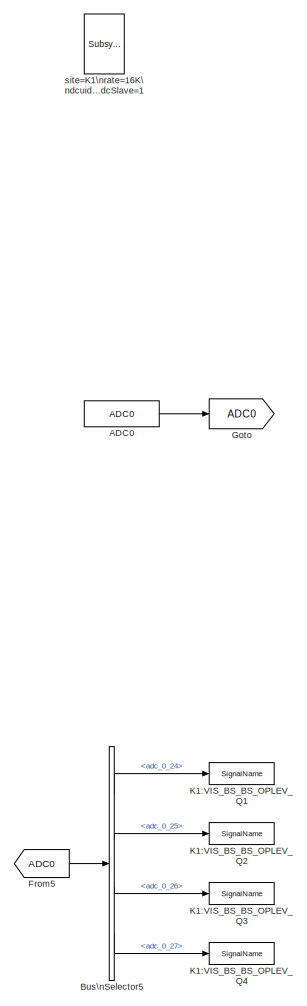
[diagram: root canvas - part 1/3, middle left region]
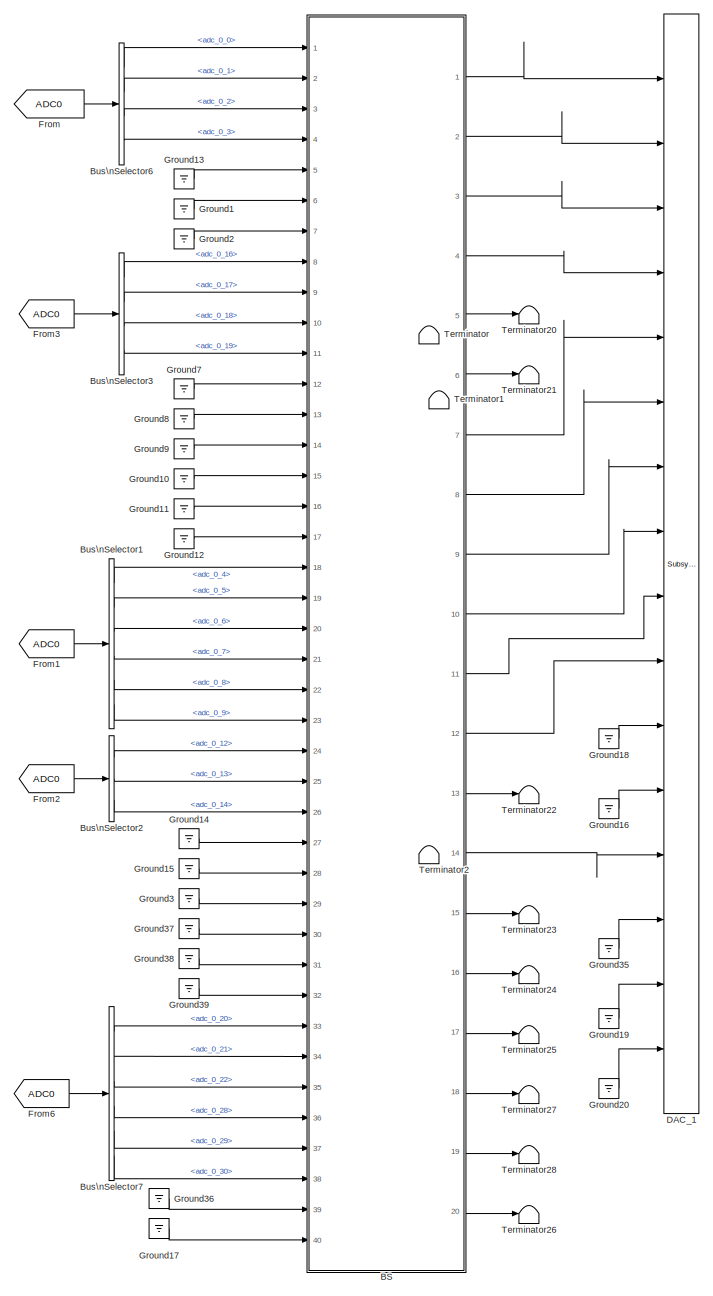
[diagram: root canvas - part 2/3, center side, full height]
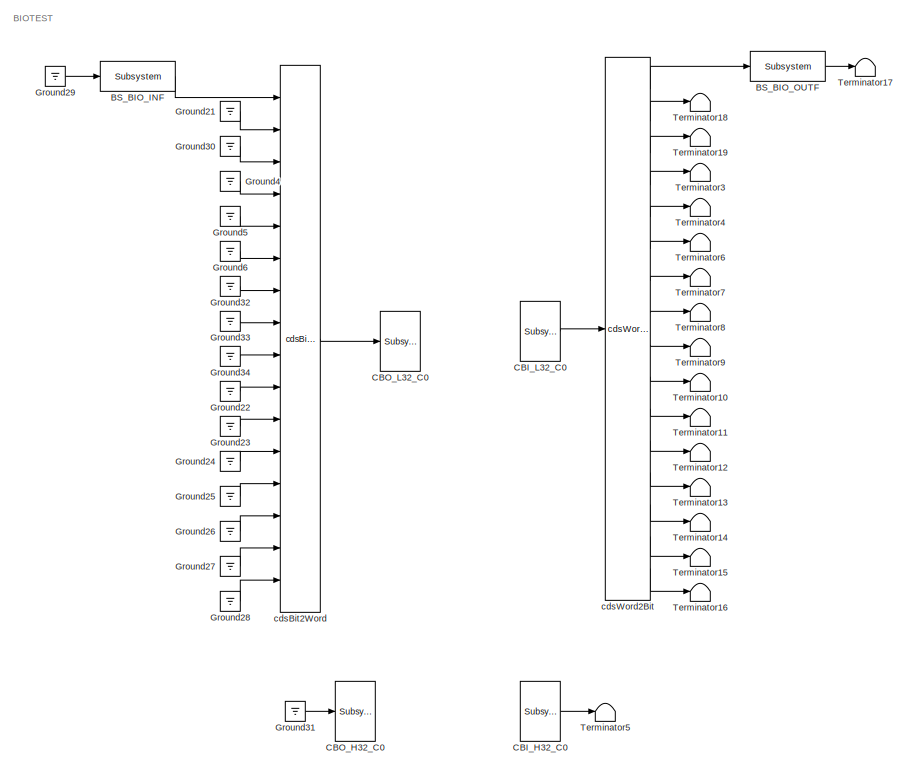
[diagram: root canvas - part 3/3, middle right region]
MODEL k1visbs_oktm
KIND model
BLOCK [Reference] ADC0  REF=cdsAdcx0/ADC0
  AttributesFormatString = %<Description>\\n%<Tag>
  Description = type-GSC_16AI64SSA\ncard_num=0
  Ports = [0, 1]
  SID = 271
  SourceBlock = cdsAdcx0/ADC0
  SourceType = SubSystem
  Tag = cdsAdc
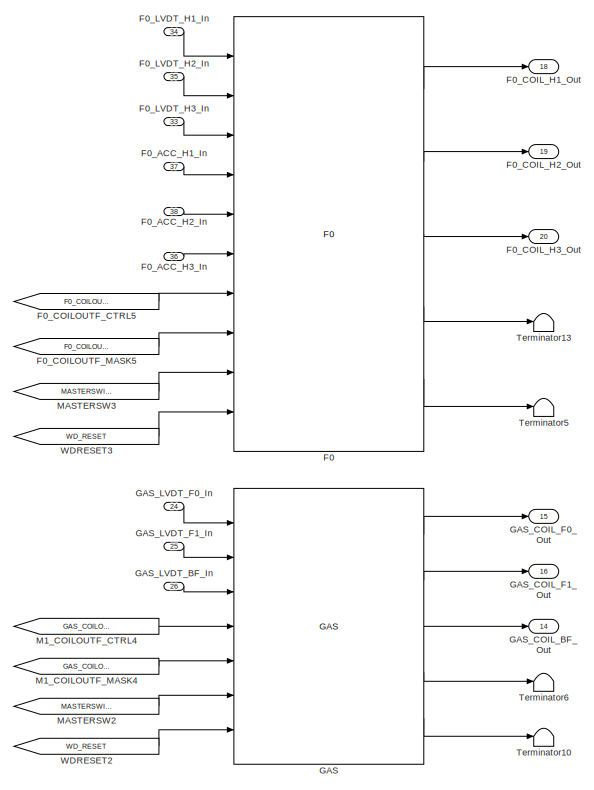
[diagram: BS - part 1/4, top left region]
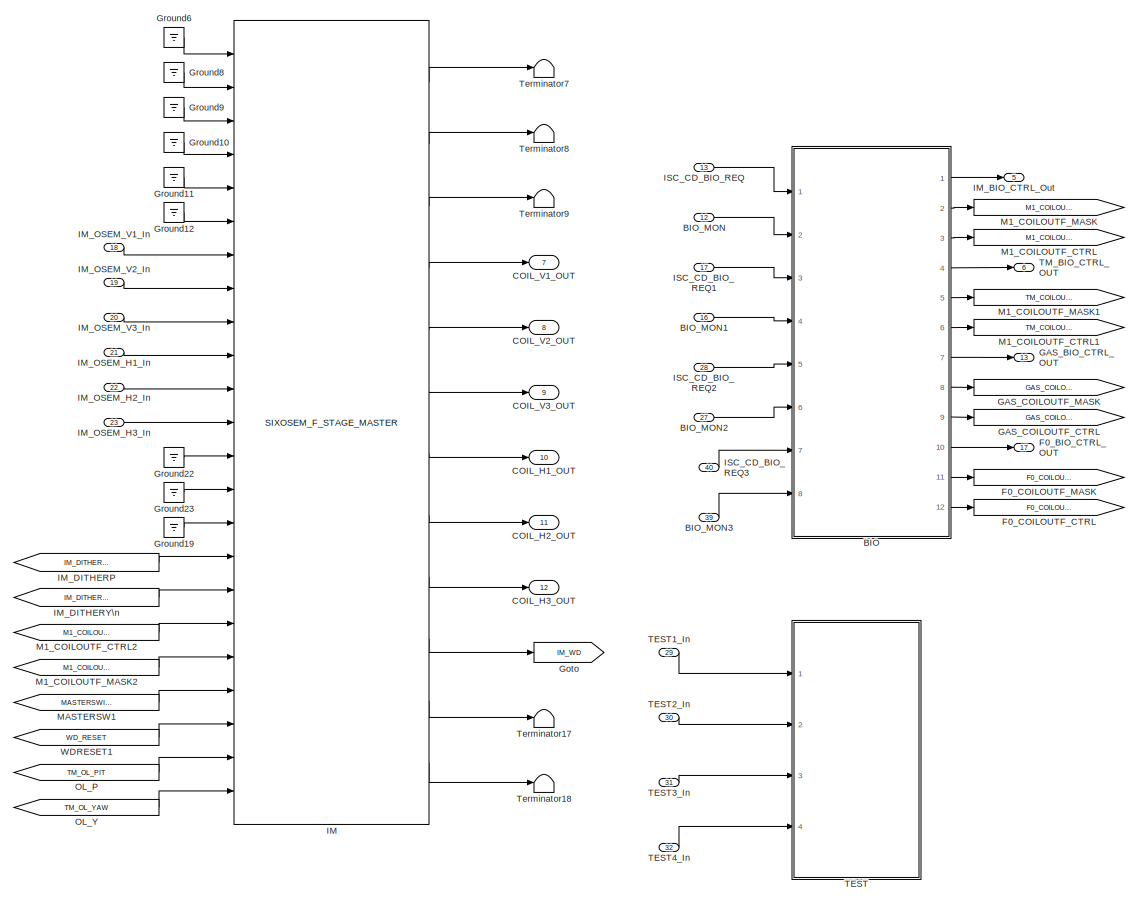
[diagram: BS - part 2/4, central region]
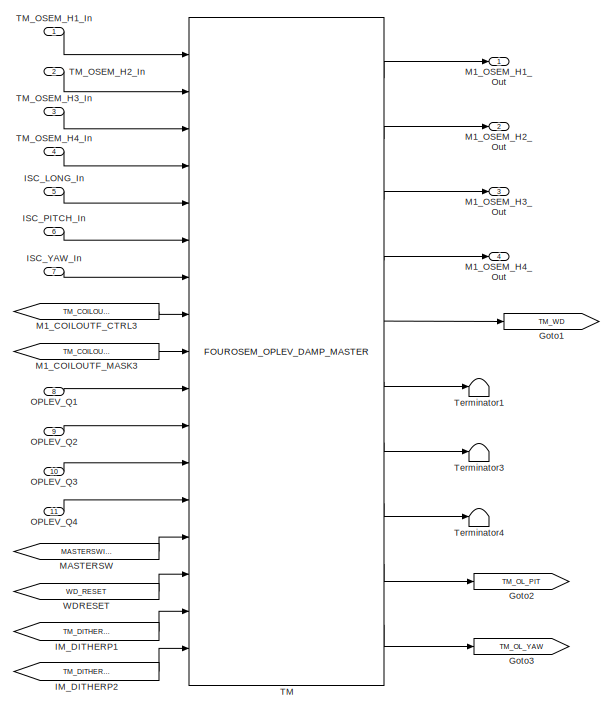
[diagram: BS - part 3/4, bottom left region]
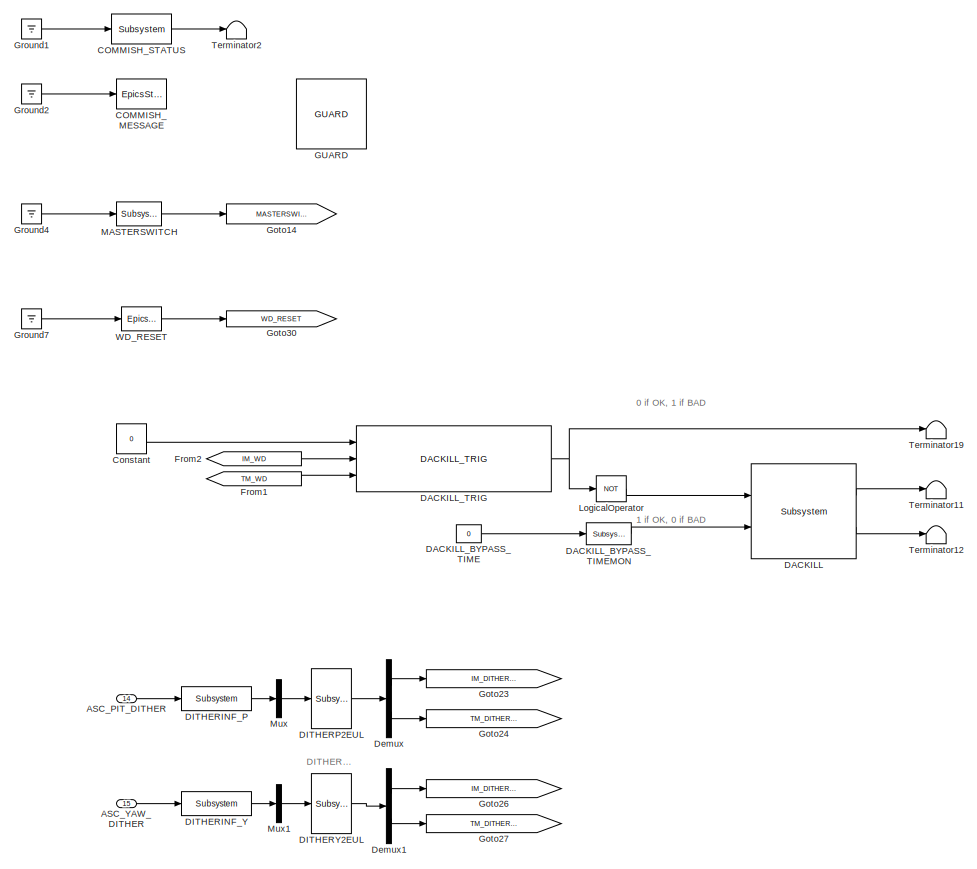
[diagram: BS - part 4/4, bottom right region]
BLOCK [SubSystem] BS
  AncestorBlock = TYPEB_MASTER/TYPEB MASTER
  AttributesFormatString = %<Description>
  Description = TYPEB MASTER
  Ports = [40, 20]
  RequestExecContextInheritance = off
  SID = 473
BLOCK [Inport] BS/ASC_PIT_DITHER
  IconDisplay = Port number
  Port = 14
  SID = 473:15
BLOCK [Inport] BS/ASC_YAW_DITHER
  IconDisplay = Port number
  Port = 15
  SID = 473:16
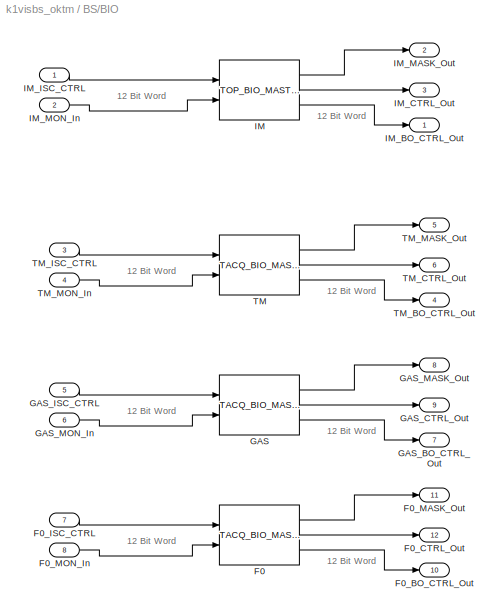
BLOCK [SubSystem] BS/BIO
  Ports = [8, 12]
  RequestExecContextInheritance = off
  SID = 473:32
BLOCK [Reference] BS/BIO/F0  REF=STATE_BIO_MASTER/TACQ_BIO_MASTER
  Ports = [2, 3]
  SID = 473:202
  SourceBlock = STATE_BIO_MASTER/TACQ_BIO_MASTER
  SourceType = SubSystem
BLOCK [Outport] BS/BIO/F0_BO_CTRL_Out
  IconDisplay = Port number
  Port = 10
  SID = 473:203
BLOCK [Outport] BS/BIO/F0_CTRL_Out
  IconDisplay = Port number
  Port = 12
  SID = 473:205
BLOCK [Inport] BS/BIO/F0_ISC_CTRL
  IconDisplay = Port number
  Port = 7
  SID = 473:200
BLOCK [Outport] BS/BIO/F0_MASK_Out
  IconDisplay = Port number
  Port = 11
  SID = 473:204
BLOCK [Inport] BS/BIO/F0_MON_In
  IconDisplay = Port number
  Port = 8
  SID = 473:201
BLOCK [Reference] BS/BIO/GAS  REF=STATE_BIO_MASTER/TACQ_BIO_MASTER
  Ports = [2, 3]
  SID = 473:39
  SourceBlock = STATE_BIO_MASTER/TACQ_BIO_MASTER
  SourceType = SubSystem
BLOCK [Outport] BS/BIO/GAS_BO_CTRL_Out
  IconDisplay = Port number
  Port = 7
  SID = 473:48
BLOCK [Outport] BS/BIO/GAS_CTRL_Out
  IconDisplay = Port number
  Port = 9
  SID = 473:50
BLOCK [Inport] BS/BIO/GAS_ISC_CTRL
  IconDisplay = Port number
  Port = 5
  SID = 473:37
BLOCK [Outport] BS/BIO/GAS_MASK_Out
  IconDisplay = Port number
  Port = 8
  SID = 473:49
BLOCK [Inport] BS/BIO/GAS_MON_In
  IconDisplay = Port number
  Port = 6
  SID = 473:38
BLOCK [Reference] BS/BIO/IM  REF=STATE_BIO_MASTER/TOP_BIO_MASTER
  Ports = [2, 3]
  SID = 473:40
  SourceBlock = STATE_BIO_MASTER/TOP_BIO_MASTER
  SourceType = SubSystem
BLOCK [Outport] BS/BIO/IM_BO_CTRL_Out
  IconDisplay = Port number
  SID = 473:42
BLOCK [Outport] BS/BIO/IM_CTRL_Out
  IconDisplay = Port number
  Port = 3
  SID = 473:44
BLOCK [Inport] BS/BIO/IM_ISC_CTRL
  IconDisplay = Port number
  SID = 473:33
BLOCK [Outport] BS/BIO/IM_MASK_Out
  IconDisplay = Port number
  Port = 2
  SID = 473:43
BLOCK [Inport] BS/BIO/IM_MON_In
  IconDisplay = Port number
  Port = 2
  SID = 473:34
BLOCK [Reference] BS/BIO/TM  REF=STATE_BIO_MASTER/TACQ_BIO_MASTER
  Ports = [2, 3]
  SID = 473:41
  SourceBlock = STATE_BIO_MASTER/TACQ_BIO_MASTER
  SourceType = SubSystem
BLOCK [Outport] BS/BIO/TM_BO_CTRL_Out
  IconDisplay = Port number
  Port = 4
  SID = 473:45
BLOCK [Outport] BS/BIO/TM_CTRL_Out
  IconDisplay = Port number
  Port = 6
  SID = 473:47
BLOCK [Inport] BS/BIO/TM_ISC_CTRL
  IconDisplay = Port number
  Port = 3
  SID = 473:35
BLOCK [Outport] BS/BIO/TM_MASK_Out
  IconDisplay = Port number
  Port = 5
  SID = 473:46
BLOCK [Inport] BS/BIO/TM_MON_In
  IconDisplay = Port number
  Port = 4
  SID = 473:36
BLOCK [Inport] BS/BIO_MON
  IconDisplay = Port number
  Port = 12
  SID = 473:13
BLOCK [Inport] BS/BIO_MON1
  IconDisplay = Port number
  Port = 16
  SID = 473:17
BLOCK [Inport] BS/BIO_MON2
  IconDisplay = Port number
  Port = 27
  SID = 473:26
BLOCK [Inport] BS/BIO_MON3
  IconDisplay = Port number
  Port = 39
  SID = 473:211
BLOCK [Outport] BS/COIL_H1_OUT
  IconDisplay = Port number
  Port = 10
  SID = 473:176
BLOCK [Outport] BS/COIL_H2_OUT
  IconDisplay = Port number
  Port = 11
  SID = 473:177
BLOCK [Outport] BS/COIL_H3_OUT
  IconDisplay = Port number
  Port = 12
  SID = 473:178
BLOCK [Outport] BS/COIL_V1_OUT
  IconDisplay = Port number
  Port = 7
  SID = 473:173
BLOCK [Outport] BS/COIL_V2_OUT
  IconDisplay = Port number
  Port = 8
  SID = 473:174
BLOCK [Outport] BS/COIL_V3_OUT
  IconDisplay = Port number
  Port = 9
  SID = 473:175
BLOCK [Reference] BS/COMMISH_MESSAGE  REF=cdsEpicsStringIn/EpicsStringIn
  AttributesFormatString = %<Tag>
  Description = cdsEpicsStringIn
  Ports = [1]
  SID = 473:57
  SourceBlock = cdsEpicsStringIn/EpicsStringIn
  SourceType = SubSystem
  Tag = cdsEpicsStringIn
BLOCK [Reference] BS/COMMISH_STATUS  REF=cdsEpicsBinIn/Subsystem
  AttributesFormatString = %<Tag>
  Description = Purpose:                                                                            \nCreate an EPICS binary (0 or 1) input channel to the FE realtime controls.          \n                                                                                    \nOperation:                                                                          \nOutputs value from an EPICS ai record. Value is binary i...<+252ch>  <repeated x4 — deduplicated; at blocks: COMMISH_STATUS, MASTERSWITCH, BS_BIO_INF, BS_BIO_OUTF>
  Ports = [1, 1]
  SID = 473:58
  SourceBlock = cdsEpicsBinIn/Subsystem
  SourceType = SubSystem
  Tag = cdsEpicsBinIn
BLOCK [Constant] BS/Constant
  SID = 473:59
  Value = 0
BLOCK [Reference] BS/DACKILL  REF=cdsDacKill/Subsystem
  AttributesFormatString = %<Description>
  Description = cdsDacKill
  Ports = [2, 2]
  SID = 473:60
  SourceBlock = cdsDacKill/Subsystem
  SourceType = SubSystem
BLOCK [Constant] BS/DACKILL_BYPASS_TIME
  SID = 473:61
  Value = 0
BLOCK [Reference] BS/DACKILL_BYPASS_TIMEMON  REF=cdsEpicsOut/Subsystem
  AttributesFormatString = %<Tag>
  Description = Purpose:                                          \nOutput a FE signal to an EPICS channel.           \n                                                  \nOperation:                                        \nTakes input value and passes it to EPICS record.  \n                                                  \nUsage:                                            \nName the part with the desired EPICS...<+14ch>
  Ports = [1, 1]
  SID = 473:62
  SourceBlock = cdsEpicsOut/Subsystem
  SourceType = SubSystem
  Tag = cdsEpicsOutput
BLOCK [Reference] BS/DACKILL_TRIG  REF=VIS_LIB/DACKILL_TRIG
  Ports = [3, 1]
  SID = 473:63
  SourceBlock = VIS_LIB/DACKILL_TRIG
  SourceType = SubSystem
BLOCK [Reference] BS/DITHERINF_P  REF=cdsFilt/Subsystem
  AttributesFormatString = %<Tag>
  Description = Purpose:                                                                                                                                                                                                                                  \nStandard CDS IIR filter module.                                                                                                                                     ...<+1302ch>
  Ports = [1, 1]
  SID = 473:64
  SourceBlock = cdsFilt/Subsystem
  SourceType = SubSystem
  Tag = cdsFilt
BLOCK [Reference] BS/DITHERINF_Y  REF=cdsFilt/Subsystem
  AttributesFormatString = %<Tag>
  Description = Purpose:                                                                                                                                                                                                                                  \nStandard CDS IIR filter module.                                                                                                                                     ...<+1302ch>
  Ports = [1, 1]
  SID = 473:65
  SourceBlock = cdsFilt/Subsystem
  SourceType = SubSystem
  Tag = cdsFilt
BLOCK [Reference] BS/DITHERP2EUL  REF=cdsMuxMatrix/Subsystem
  AttributesFormatString = %<Tag>
  Description = Any size matrix. Inputs and outputs must be connected using Mux and Demux parts.
  Ports = [1, 1]
  SID = 473:66
  SourceBlock = cdsMuxMatrix/Subsystem
  SourceType = SubSystem
  Tag = cdsMuxMatrix
BLOCK [Reference] BS/DITHERY2EUL  REF=cdsMuxMatrix/Subsystem
  AttributesFormatString = %<Tag>
  Description = Any size matrix. Inputs and outputs must be connected using Mux and Demux parts.
  Ports = [1, 1]
  SID = 473:67
  SourceBlock = cdsMuxMatrix/Subsystem
  SourceType = SubSystem
  Tag = cdsMuxMatrix
BLOCK [Demux] BS/Demux
  DisplayOption = bar
  Outputs = 2
  Ports = [1, 2]
  SID = 473:68
BLOCK [Demux] BS/Demux1
  DisplayOption = bar
  Outputs = 2
  Ports = [1, 2]
  SID = 473:69
BLOCK [Reference] BS/F0  REF=F0_MASTER/F0
  Ports = [10, 5]
  SID = 473:191
  SourceBlock = F0_MASTER/F0
  SourceType = SubSystem
BLOCK [Inport] BS/F0_ACC_H1_In
  IconDisplay = Port number
  Port = 37
  SID = 473:196
BLOCK [Inport] BS/F0_ACC_H2_In
  IconDisplay = Port number
  Port = 38
  SID = 473:197
BLOCK [Inport] BS/F0_ACC_H3_In
  IconDisplay = Port number
  Port = 36
  SID = 473:195
BLOCK [Outport] BS/F0_BIO_CTRL_OUT
  IconDisplay = Port number
  Port = 17
  SID = 473:210
BLOCK [Goto] BS/F0_COILOUTF_CTRL
  GotoTag = F0_COILOUTF_CTRL
  SID = 473:208
BLOCK [From] BS/F0_COILOUTF_CTRL5
  CloseFcn = tagdialog Close
  GotoTag = F0_COILOUTF_CTRL
  SID = 473:214
BLOCK [Goto] BS/F0_COILOUTF_MASK
  GotoTag = F0_COILOUTF_MASK
  SID = 473:209
BLOCK [From] BS/F0_COILOUTF_MASK5
  CloseFcn = tagdialog Close
  GotoTag = F0_COILOUTF_MASK
  SID = 473:215
BLOCK [Outport] BS/F0_COIL_H1_Out
  IconDisplay = Port number
  Port = 18
  SID = 473:217
BLOCK [Outport] BS/F0_COIL_H2_Out
  IconDisplay = Port number
  Port = 19
  SID = 473:218
BLOCK [Outport] BS/F0_COIL_H3_Out
  IconDisplay = Port number
  Port = 20
  SID = 473:216
BLOCK [Inport] BS/F0_LVDT_H1_In
  IconDisplay = Port number
  Port = 34
  SID = 473:193
BLOCK [Inport] BS/F0_LVDT_H2_In
  IconDisplay = Port number
  Port = 35
  SID = 473:194
BLOCK [Inport] BS/F0_LVDT_H3_In
  IconDisplay = Port number
  Port = 33
  SID = 473:192
BLOCK [From] BS/From1
  CloseFcn = tagdialog Close
  GotoTag = TM_WD
  SID = 473:70
BLOCK [From] BS/From2
  CloseFcn = tagdialog Close
  GotoTag = IM_WD
  SID = 473:71
BLOCK [Reference] BS/GAS  REF=GAS_TYPEB_MASTER/GAS
  Description = GAS_TYPEB_MASTER
  Ports = [7, 5]
  SID = 473:185
  SourceBlock = GAS_TYPEB_MASTER/GAS
  SourceType = SubSystem
  Tag = GAS_TYPEB_MASTER
BLOCK [Outport] BS/GAS_BIO_CTRL_OUT
  IconDisplay = Port number
  Port = 13
  SID = 473:179
BLOCK [Goto] BS/GAS_COILOUTF_CTRL
  GotoTag = GAS_COILOUTF_CTRL
  SID = 473:73
BLOCK [Goto] BS/GAS_COILOUTF_MASK
  GotoTag = GAS_COILOUTF_MASK
  SID = 473:74
BLOCK [Outport] BS/GAS_COIL_BF_Out
  IconDisplay = Port number
  Port = 14
  SID = 473:180
BLOCK [Outport] BS/GAS_COIL_F0_Out
  IconDisplay = Port number
  Port = 15
  SID = 473:188
BLOCK [Outport] BS/GAS_COIL_F1_Out
  IconDisplay = Port number
  Port = 16
  SID = 473:189
BLOCK [Inport] BS/GAS_LVDT_BF_In
  IconDisplay = Port number
  Port = 26
  SID = 473:25
BLOCK [Inport] BS/GAS_LVDT_F0_In
  IconDisplay = Port number
  Port = 24
  SID = 473:186
BLOCK [Inport] BS/GAS_LVDT_F1_In
  IconDisplay = Port number
  Port = 25
  SID = 473:187
BLOCK [Reference] BS/GUARD  REF=ISC_common/GUARD
  Ports = []
  SID = 473:75
  SourceBlock = ISC_common/GUARD
  SourceType = SubSystem
BLOCK [Goto] BS/Goto
  GotoTag = IM_WD
  SID = 473:76
BLOCK [Goto] BS/Goto1
  GotoTag = TM_WD
  SID = 473:77
BLOCK [Goto] BS/Goto14
  GotoTag = MASTERSWITCH
  SID = 473:78
BLOCK [Goto] BS/Goto2
  GotoTag = TM_OL_PIT
  SID = 473:79
BLOCK [Goto] BS/Goto23
  GotoTag = IM_DITHER_PIT
  SID = 473:80
BLOCK [Goto] BS/Goto24
  GotoTag = TM_DITHER_PIT
  SID = 473:81
BLOCK [Goto] BS/Goto26
  GotoTag = IM_DITHER_YAW
  SID = 473:82
BLOCK [Goto] BS/Goto27
  GotoTag = TM_DITHER_YAW
  SID = 473:83
BLOCK [Goto] BS/Goto3
  GotoTag = TM_OL_YAW
  SID = 473:84
BLOCK [Goto] BS/Goto30
  GotoTag = WD_RESET
  SID = 473:85
BLOCK [Ground] BS/Ground1
  SID = 473:86
BLOCK [Ground] BS/Ground10
  SID = 473:87
BLOCK [Ground] BS/Ground11
  SID = 473:88
BLOCK [Ground] BS/Ground12
  SID = 473:89
BLOCK [Ground] BS/Ground19
  SID = 473:90
BLOCK [Ground] BS/Ground2
  SID = 473:91
BLOCK [Ground] BS/Ground22
  SID = 473:92
BLOCK [Ground] BS/Ground23
  SID = 473:93
BLOCK [Ground] BS/Ground4
  SID = 473:94
BLOCK [Ground] BS/Ground6
  SID = 473:95
BLOCK [Ground] BS/Ground7
  SID = 473:96
BLOCK [Ground] BS/Ground8
  SID = 473:97
BLOCK [Ground] BS/Ground9
  SID = 473:98
BLOCK [Reference] BS/IM  REF=SIXOSEM_F_STAGE_MASTER/SIXOSEM_F_STAGE_MASTER
  Description = SIXOSEMSTAGE_FACE_MASTER
  Ports = [23, 12]
  SID = 473:99
  SourceBlock = SIXOSEM_F_STAGE_MASTER/SIXOSEM_F_STAGE_MASTER
  SourceType = SubSystem
BLOCK [Outport] BS/IM_BIO_CTRL_Out
  IconDisplay = Port number
  Port = 5
  SID = 473:171
BLOCK [From] BS/IM_DITHERP
  CloseFcn = tagdialog Close
  GotoTag = IM_DITHER_PIT
  SID = 473:100
BLOCK [From] BS/IM_DITHERP1
  CloseFcn = tagdialog Close
  GotoTag = TM_DITHER_PIT
  SID = 473:101
BLOCK [From] BS/IM_DITHERP2
  CloseFcn = tagdialog Close
  GotoTag = TM_DITHER_YAW
  SID = 473:102
BLOCK [From] BS/IM_DITHERY\n
  CloseFcn = tagdialog Close
  GotoTag = IM_DITHER_YAW
  SID = 473:103
BLOCK [Inport] BS/IM_OSEM_H1_In
  IconDisplay = Port number
  Port = 21
  SID = 473:22
BLOCK [Inport] BS/IM_OSEM_H2_In
  IconDisplay = Port number
  Port = 22
  SID = 473:23
BLOCK [Inport] BS/IM_OSEM_H3_In
  IconDisplay = Port number
  Port = 23
  SID = 473:24
BLOCK [Inport] BS/IM_OSEM_V1_In
  IconDisplay = Port number
  Port = 18
  SID = 473:19
BLOCK [Inport] BS/IM_OSEM_V2_In
  IconDisplay = Port number
  Port = 19
  SID = 473:20
BLOCK [Inport] BS/IM_OSEM_V3_In
  IconDisplay = Port number
  Port = 20
  SID = 473:21
BLOCK [Inport] BS/ISC_CD_BIO_REQ
  IconDisplay = Port number
  Port = 13
  SID = 473:14
BLOCK [Inport] BS/ISC_CD_BIO_REQ1
  IconDisplay = Port number
  Port = 17
  SID = 473:18
BLOCK [Inport] BS/ISC_CD_BIO_REQ2
  IconDisplay = Port number
  Port = 28
  SID = 473:27
BLOCK [Inport] BS/ISC_CD_BIO_REQ3
  IconDisplay = Port number
  Port = 40
  SID = 473:212
BLOCK [Inport] BS/ISC_LONG_In
  IconDisplay = Port number
  Port = 5
  SID = 473:6
BLOCK [Inport] BS/ISC_PITCH_In
  IconDisplay = Port number
  Port = 6
  SID = 473:7
BLOCK [Inport] BS/ISC_YAW_In
  IconDisplay = Port number
  Port = 7
  SID = 473:8
BLOCK [Logic] BS/LogicalOperator
  AllPortsSameDT = off
  Operator = NOT
  OutDataTypeStr = boolean
  Ports = [1, 1]
  SID = 473:104
BLOCK [Goto] BS/M1_COILOUTF_CTRL
  GotoTag = M1_COILOUTF_CTRL
  SID = 473:105
BLOCK [Goto] BS/M1_COILOUTF_CTRL1
  GotoTag = TM_COILOUTF_CTRL
  SID = 473:106
BLOCK [From] BS/M1_COILOUTF_CTRL2
  CloseFcn = tagdialog Close
  GotoTag = M1_COILOUTF_CTRL
  SID = 473:107
BLOCK [From] BS/M1_COILOUTF_CTRL3
  CloseFcn = tagdialog Close
  GotoTag = TM_COILOUTF_CTRL
  SID = 473:108
BLOCK [From] BS/M1_COILOUTF_CTRL4
  CloseFcn = tagdialog Close
  GotoTag = GAS_COILOUTF_CTRL
  SID = 473:109
BLOCK [Goto] BS/M1_COILOUTF_MASK
  GotoTag = M1_COILOUTF_MASK
  SID = 473:110
BLOCK [Goto] BS/M1_COILOUTF_MASK1
  GotoTag = TM_COILOUTF_MASK
  SID = 473:111
BLOCK [From] BS/M1_COILOUTF_MASK2
  CloseFcn = tagdialog Close
  GotoTag = M1_COILOUTF_MASK
  SID = 473:112
BLOCK [From] BS/M1_COILOUTF_MASK3
  CloseFcn = tagdialog Close
  GotoTag = TM_COILOUTF_MASK
  SID = 473:113
BLOCK [From] BS/M1_COILOUTF_MASK4
  CloseFcn = tagdialog Close
  GotoTag = GAS_COILOUTF_MASK
  SID = 473:114
BLOCK [Outport] BS/M1_OSEM_H1_Out
  IconDisplay = Port number
  SID = 473:167
BLOCK [Outport] BS/M1_OSEM_H2_Out
  IconDisplay = Port number
  Port = 2
  SID = 473:168
BLOCK [Outport] BS/M1_OSEM_H3_Out
  IconDisplay = Port number
  Port = 3
  SID = 473:169
BLOCK [Outport] BS/M1_OSEM_H4_Out
  IconDisplay = Port number
  Port = 4
  SID = 473:170
BLOCK [From] BS/MASTERSW
  CloseFcn = tagdialog Close
  GotoTag = MASTERSWITCH
  SID = 473:115
BLOCK [From] BS/MASTERSW1
  CloseFcn = tagdialog Close
  GotoTag = MASTERSWITCH
  SID = 473:116
BLOCK [From] BS/MASTERSW2
  CloseFcn = tagdialog Close
  GotoTag = MASTERSWITCH
  SID = 473:117
BLOCK [From] BS/MASTERSW3
  CloseFcn = tagdialog Close
  GotoTag = MASTERSWITCH
  SID = 473:198
BLOCK [Reference] BS/MASTERSWITCH  REF=cdsEpicsBinIn/Subsystem
  AttributesFormatString = %<Tag>
  Ports = [1, 1]
  SID = 473:118
  SourceBlock = cdsEpicsBinIn/Subsystem
  SourceType = SubSystem
  Tag = cdsEpicsBinIn
BLOCK [Mux] BS/Mux
  DisplayOption = bar
  Inputs = 1
  Ports = [1, 1]
  SID = 473:119
BLOCK [Mux] BS/Mux1
  DisplayOption = bar
  Inputs = 1
  Ports = [1, 1]
  SID = 473:120
BLOCK [From] BS/OL_P
  CloseFcn = tagdialog Close
  GotoTag = TM_OL_PIT
  SID = 473:121
BLOCK [From] BS/OL_Y
  CloseFcn = tagdialog Close
  GotoTag = TM_OL_YAW
  SID = 473:122
BLOCK [Inport] BS/OPLEV_Q1
  IconDisplay = Port number
  Port = 8
  SID = 473:9
BLOCK [Inport] BS/OPLEV_Q2
  IconDisplay = Port number
  Port = 9
  SID = 473:10
BLOCK [Inport] BS/OPLEV_Q3
  IconDisplay = Port number
  Port = 10
  SID = 473:11
BLOCK [Inport] BS/OPLEV_Q4
  IconDisplay = Port number
  Port = 11
  SID = 473:12
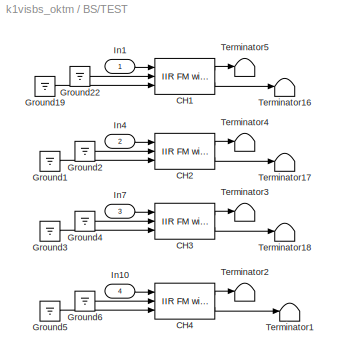
BLOCK [SubSystem] BS/TEST
  Ports = [4]
  RequestExecContextInheritance = off
  SID = 473:123
BLOCK [Reference] BS/TEST/CH1  REF=cdsFiltCtrl/IIR FM with control
  AttributesFormatString = %<Tag>
  Description = cdsFiltCntrl is the standard IIR filter module (exactly the same as cdsFilt) but with added control data output 'Ctrl'. Filter module digital signal output appears on the first output, which is called 'Val'. 'Ctrl' output has a bit pattern encoding the state of filter's on/off switches (FM1 through FM10). The bit values are:\n                                                                        ...<+4621ch>  <repeated x4 — deduplicated; at blocks: CH1, CH2, CH3, CH4>
  Ports = [3, 2]
  SID = 473:128
  SourceBlock = cdsFiltCtrl/IIR FM with control
  SourceType = SubSystem
  Tag = cdsFiltCtrl
BLOCK [Reference] BS/TEST/CH2  REF=cdsFiltCtrl/IIR FM with control
  AttributesFormatString = %<Tag>
  Ports = [3, 2]
  SID = 473:129
  SourceBlock = cdsFiltCtrl/IIR FM with control
  SourceType = SubSystem
  Tag = cdsFiltCtrl
BLOCK [Reference] BS/TEST/CH3  REF=cdsFiltCtrl/IIR FM with control
  AttributesFormatString = %<Tag>
  Ports = [3, 2]
  SID = 473:130
  SourceBlock = cdsFiltCtrl/IIR FM with control
  SourceType = SubSystem
  Tag = cdsFiltCtrl
BLOCK [Reference] BS/TEST/CH4  REF=cdsFiltCtrl/IIR FM with control
  AttributesFormatString = %<Tag>
  Ports = [3, 2]
  SID = 473:131
  SourceBlock = cdsFiltCtrl/IIR FM with control
  SourceType = SubSystem
  Tag = cdsFiltCtrl
BLOCK [Ground] BS/TEST/Ground1
  SID = 473:132
BLOCK [Ground] BS/TEST/Ground19
  SID = 473:133
BLOCK [Ground] BS/TEST/Ground2
  SID = 473:134
BLOCK [Ground] BS/TEST/Ground22
  SID = 473:135
BLOCK [Ground] BS/TEST/Ground3
  SID = 473:136
BLOCK [Ground] BS/TEST/Ground4
  SID = 473:137
BLOCK [Ground] BS/TEST/Ground5
  SID = 473:138
BLOCK [Ground] BS/TEST/Ground6
  SID = 473:139
BLOCK [Inport] BS/TEST/In1
  IconDisplay = Port number
  SID = 473:124
BLOCK [Inport] BS/TEST/In10
  IconDisplay = Port number
  Port = 4
  SID = 473:127
BLOCK [Inport] BS/TEST/In4
  IconDisplay = Port number
  Port = 2
  SID = 473:125
BLOCK [Inport] BS/TEST/In7
  IconDisplay = Port number
  Port = 3
  SID = 473:126
BLOCK [Terminator] BS/TEST/Terminator1
  SID = 473:140
BLOCK [Terminator] BS/TEST/Terminator16
  SID = 473:141
BLOCK [Terminator] BS/TEST/Terminator17
  SID = 473:142
BLOCK [Terminator] BS/TEST/Terminator18
  SID = 473:143
BLOCK [Terminator] BS/TEST/Terminator2
  SID = 473:144
BLOCK [Terminator] BS/TEST/Terminator3
  SID = 473:145
BLOCK [Terminator] BS/TEST/Terminator4
  SID = 473:146
BLOCK [Terminator] BS/TEST/Terminator5
  SID = 473:147
BLOCK [Inport] BS/TEST1_In
  IconDisplay = Port number
  Port = 29
  SID = 473:28
BLOCK [Inport] BS/TEST2_In
  IconDisplay = Port number
  Port = 30
  SID = 473:29
BLOCK [Inport] BS/TEST3_In
  IconDisplay = Port number
  Port = 31
  SID = 473:30
BLOCK [Inport] BS/TEST4_In
  IconDisplay = Port number
  Port = 32
  SID = 473:31
BLOCK [Reference] BS/TM  REF=FOUROSEM_OPLEV_DAMP_MASTER/FOUROSEM_OPLEV_DAMP_MASTER
  Ports = [17, 10]
  SID = 473:148
  SourceBlock = FOUROSEM_OPLEV_DAMP_MASTER/FOUROSEM_OPLEV_DAMP_MASTER
  SourceType = SubSystem
BLOCK [Outport] BS/TM_BIO_CTRL_OUT
  IconDisplay = Port number
  Port = 6
  SID = 473:172
BLOCK [Inport] BS/TM_OSEM_H1_In
  IconDisplay = Port number
  SID = 473:2
BLOCK [Inport] BS/TM_OSEM_H2_In
  IconDisplay = Port number
  Port = 2
  SID = 473:3
BLOCK [Inport] BS/TM_OSEM_H3_In
  IconDisplay = Port number
  Port = 3
  SID = 473:4
BLOCK [Inport] BS/TM_OSEM_H4_In
  IconDisplay = Port number
  Port = 4
  SID = 473:5
BLOCK [Terminator] BS/Terminator1
  SID = 473:149
BLOCK [Terminator] BS/Terminator10
  SID = 473:150
BLOCK [Terminator] BS/Terminator11
  SID = 473:151
BLOCK [Terminator] BS/Terminator12
  SID = 473:152
BLOCK [Terminator] BS/Terminator13
  SID = 473:220
BLOCK [Terminator] BS/Terminator17
  SID = 473:153
BLOCK [Terminator] BS/Terminator18
  SID = 473:154
BLOCK [Terminator] BS/Terminator19
  SID = 473:155
BLOCK [Terminator] BS/Terminator2
  SID = 473:156
BLOCK [Terminator] BS/Terminator3
  SID = 473:157
BLOCK [Terminator] BS/Terminator4
  SID = 473:158
BLOCK [Terminator] BS/Terminator5
  SID = 473:219
BLOCK [Terminator] BS/Terminator6
  SID = 473:159
BLOCK [Terminator] BS/Terminator7
  SID = 473:160
BLOCK [Terminator] BS/Terminator8
  SID = 473:161
BLOCK [Terminator] BS/Terminator9
  SID = 473:162
BLOCK [From] BS/WDRESET
  CloseFcn = tagdialog Close
  GotoTag = WD_RESET
  SID = 473:163
BLOCK [From] BS/WDRESET1
  CloseFcn = tagdialog Close
  GotoTag = WD_RESET
  SID = 473:164
BLOCK [From] BS/WDRESET2
  CloseFcn = tagdialog Close
  GotoTag = WD_RESET
  SID = 473:165
BLOCK [From] BS/WDRESET3
  CloseFcn = tagdialog Close
  GotoTag = WD_RESET
  SID = 473:199
BLOCK [Reference] BS/WD_RESET  REF=cdsEpicsMomentary/EpicsMomentary
  AttributesFormatString = %<Tag>
  Ports = [1, 1]
  SID = 473:166
  SourceBlock = cdsEpicsMomentary/EpicsMomentary
  SourceType = SubSystem
  Tag = cdsEpicsMomentary
BLOCK [Reference] BS_BIO_INF  REF=cdsEpicsBinIn/Subsystem
  AttributesFormatString = %<Tag>
  Ports = [1, 1]
  SID = 449
  SourceBlock = cdsEpicsBinIn/Subsystem
  SourceType = SubSystem
  Tag = cdsEpicsBinIn
BLOCK [Reference] BS_BIO_OUTF  REF=cdsEpicsBinIn/Subsystem
  AttributesFormatString = %<Tag>
  Ports = [1, 1]
  SID = 448
  SourceBlock = cdsEpicsBinIn/Subsystem
  SourceType = SubSystem
  Tag = cdsEpicsBinIn
BLOCK [BusSelector] Bus\nSelector1
  AttributesFormatString = %<Description>
  Description = ADC Selector
  OutputSignals = adc_0_4,adc_0_5,adc_0_6,adc_0_7,adc_0_8,adc_0_9
  Ports = [1, 6]
  SID = 392
BLOCK [BusSelector] Bus\nSelector2
  AttributesFormatString = %<Description>
  Description = ADC Selector
  OutputSignals = adc_0_12,adc_0_13,adc_0_14
  Ports = [1, 3]
  SID = 403
BLOCK [BusSelector] Bus\nSelector3
  AttributesFormatString = %<Description>
  Description = ADC Selector
  OutputSignals = adc_0_16,adc_0_17,adc_0_18,adc_0_19
  Ports = [1, 4]
  SID = 415
BLOCK [BusSelector] Bus\nSelector5
  AttributesFormatString = %<Description>
  Description = ADC Selector
  OutputSignals = adc_0_24,adc_0_25,adc_0_26,adc_0_27
  Ports = [1, 4]
  SID = 419
BLOCK [BusSelector] Bus\nSelector6
  AttributesFormatString = %<Description>
  Description = ADC Selector
  OutputSignals = adc_0_0,adc_0_1,adc_0_2,adc_0_3
  Ports = [1, 4]
  SID = 284
BLOCK [BusSelector] Bus\nSelector7
  AttributesFormatString = %<Description>
  Description = ADC Selector
  OutputSignals = adc_0_20,adc_0_21,adc_0_22,adc_0_28,adc_0_29,adc_0_30
  Ports = [1, 6]
  SID = 488
BLOCK [Reference] CBI_H32_C0  REF=cdsCDI64/Subsystem
  AttributesFormatString = %<Tag>\\n%<Description>
  Description = card_num=1
  Ports = [0, 1]
  SID = 470
  SourceBlock = cdsCDI64/Subsystem
  SourceType = SubSystem
  Tag = cdsCDI64
BLOCK [Reference] CBI_L32_C0  REF=cdsCDI64/Subsystem
  AttributesFormatString = %<Tag>\\n%<Description>
  Description = card_num=0
  Ports = [0, 1]
  SID = 469
  SourceBlock = cdsCDI64/Subsystem
  SourceType = SubSystem
  Tag = cdsCDI64
BLOCK [Reference] CBO_H32_C0  REF=cdsCDO64/Subsystem
  AttributesFormatString = %<Tag>\\n%<Description>
  Description = card_num=1
  Ports = [1]
  SID = 468
  SourceBlock = cdsCDO64/Subsystem
  SourceType = SubSystem
  Tag = cdsCDO64
BLOCK [Reference] CBO_L32_C0  REF=cdsCDO64/Subsystem
  AttributesFormatString = %<Tag>\\n%<Description>
  Description = card_num=0
  Ports = [1]
  SID = 467
  SourceBlock = cdsCDO64/Subsystem
  SourceType = SubSystem
  Tag = cdsCDO64
BLOCK [Reference] DAC_1  REF=dac/Subsystem  (lib defined in slx_40ef132df75b, slx_b7657ccccc5b, +4 more)
  AttributesFormatString = %<Description>
  Description = type=GSC_16AO16,\ncard_num=0
  Ports = [16]
  SID = 378
  SourceBlock = dac/Subsystem
  SourceType = SubSystem
BLOCK [From] From
  GotoTag = ADC0
  SID = 397
BLOCK [From] From1
  GotoTag = ADC0
  SID = 398
BLOCK [From] From2
  GotoTag = ADC0
  SID = 404
BLOCK [From] From3
  GotoTag = ADC0
  SID = 414
BLOCK [From] From5
  GotoTag = ADC0
  SID = 420
BLOCK [From] From6
  GotoTag = ADC0
  SID = 487
BLOCK [Goto] Goto
  GotoTag = ADC0
  SID = 396
BLOCK [Ground] Ground1
  SID = 372
BLOCK [Ground] Ground10
  SID = 361
BLOCK [Ground] Ground11
  SID = 370
BLOCK [Ground] Ground12
  SID = 371
BLOCK [Ground] Ground13
  SID = 379
BLOCK [Ground] Ground14
  SID = 401
BLOCK [Ground] Ground15
  SID = 402
BLOCK [Ground] Ground16
  SID = 405
BLOCK [Ground] Ground17
  SID = 480
BLOCK [Ground] Ground18
  SID = 407
BLOCK [Ground] Ground19
  SID = 476
BLOCK [Ground] Ground2
  SID = 373
BLOCK [Ground] Ground20
  SID = 477
BLOCK [Ground] Ground21
  SID = 466
BLOCK [Ground] Ground22
  SID = 465
BLOCK [Ground] Ground23
  SID = 464
BLOCK [Ground] Ground24
  SID = 463
BLOCK [Ground] Ground25
  SID = 462
BLOCK [Ground] Ground26
  SID = 461
BLOCK [Ground] Ground27
  SID = 460
BLOCK [Ground] Ground28
  SID = 459
BLOCK [Ground] Ground29
  SID = 458
BLOCK [Ground] Ground3
  SID = 418
BLOCK [Ground] Ground30
  SID = 457
BLOCK [Ground] Ground31
  SID = 456
BLOCK [Ground] Ground32
  SID = 455
BLOCK [Ground] Ground33
  SID = 454
BLOCK [Ground] Ground34
  SID = 453
BLOCK [Ground] Ground35
  SID = 478
BLOCK [Ground] Ground36
  SID = 489
BLOCK [Ground] Ground37
  SID = 490
BLOCK [Ground] Ground38
  SID = 491
BLOCK [Ground] Ground39
  SID = 492
BLOCK [Ground] Ground4
  SID = 452
BLOCK [Ground] Ground5
  SID = 451
BLOCK [Ground] Ground6
  SID = 450
BLOCK [Ground] Ground7
  SID = 330
BLOCK [Ground] Ground8
  SID = 333
BLOCK [Ground] Ground9
  SID = 360
BLOCK [Reference] K1:VIS_BS_BS_OPLEV_Q1  REF=cdsIPCx/SignalName
  AttributesFormatString = %<Tag>
  Description = Inter-Process Communication via PCI Express network.
  Ports = [1, 2]
  SID = 421
  SourceBlock = cdsIPCx/SignalName
  SourceType = SubSystem
  Tag = cdsIPCx_PCIE
BLOCK [Reference] K1:VIS_BS_BS_OPLEV_Q2  REF=cdsIPCx/SignalName
  AttributesFormatString = %<Tag>
  Description = Inter-Process Communication via PCI Express network.
  Ports = [1, 2]
  SID = 422
  SourceBlock = cdsIPCx/SignalName
  SourceType = SubSystem
  Tag = cdsIPCx_PCIE
BLOCK [Reference] K1:VIS_BS_BS_OPLEV_Q3  REF=cdsIPCx/SignalName
  AttributesFormatString = %<Tag>
  Description = Inter-Process Communication via PCI Express network.
  Ports = [1, 2]
  SID = 423
  SourceBlock = cdsIPCx/SignalName
  SourceType = SubSystem
  Tag = cdsIPCx_PCIE
BLOCK [Reference] K1:VIS_BS_BS_OPLEV_Q4  REF=cdsIPCx/SignalName
  AttributesFormatString = %<Tag>
  Description = Inter-Process Communication via PCI Express network.
  Ports = [1, 2]
  SID = 424
  SourceBlock = cdsIPCx/SignalName
  SourceType = SubSystem
  Tag = cdsIPCx_PCIE
BLOCK [Terminator] Terminator
  SID = 411
BLOCK [Terminator] Terminator1
  SID = 412
BLOCK [Terminator] Terminator10
  SID = 447
BLOCK [Terminator] Terminator11
  SID = 446
BLOCK [Terminator] Terminator12
  SID = 445
BLOCK [Terminator] Terminator13
  SID = 444
BLOCK [Terminator] Terminator14
  SID = 443
BLOCK [Terminator] Terminator15
  SID = 442
BLOCK [Terminator] Terminator16
  SID = 441
BLOCK [Terminator] Terminator17
  SID = 440
BLOCK [Terminator] Terminator18
  SID = 439
BLOCK [Terminator] Terminator19
  SID = 438
BLOCK [Terminator] Terminator2
  SID = 413
BLOCK [Terminator] Terminator20
  SID = 474
BLOCK [Terminator] Terminator21
  SID = 475
BLOCK [Terminator] Terminator22
  SID = 479
BLOCK [Terminator] Terminator23
  SID = 481
BLOCK [Terminator] Terminator24
  SID = 482
BLOCK [Terminator] Terminator25
  SID = 483
BLOCK [Terminator] Terminator26
  SID = 484
BLOCK [Terminator] Terminator27
  SID = 485
BLOCK [Terminator] Terminator28
  SID = 486
BLOCK [Terminator] Terminator3
  SID = 437
BLOCK [Terminator] Terminator4
  SID = 436
BLOCK [Terminator] Terminator5
  SID = 435
BLOCK [Terminator] Terminator6
  SID = 434
BLOCK [Terminator] Terminator7
  SID = 433
BLOCK [Terminator] Terminator8
  SID = 432
BLOCK [Terminator] Terminator9
  SID = 431
BLOCK [Reference] cdsBit2Word  REF=cdsBit2Word/cdsBit2Word
  AttributesFormatString = %<Tag>
  Description = Forms single 16 bit integer from 16 0/1 inputs.
  Ports = [16, 1]
  SID = 430
  SourceBlock = cdsBit2Word/cdsBit2Word
  SourceType = SubSystem
  Tag = cdsBit2Word
BLOCK [Reference] cdsWord2Bit  REF=cdsWord2Bit/cdsWord2Bit
  AttributesFormatString = cdsWord2Bit
  Description = Generate 16 0/1 outputs from single 16-bit integer input
  Ports = [1, 16]
  SID = 429
  SourceBlock = cdsWord2Bit/cdsWord2Bit
  SourceType = SubSystem
  Tag = cdsWord2Bit
BLOCK [Reference] site=K1\nrate=16K\ndcuid=96\nhost=k1pr2\nspecific_cpu=4\nadcSlave=1  REF=cdsParameters/Subsystem
  AttributesFormatString = %<Tag>
  Description = Purpose:                                                                                                                                                                                                                                \nProvide system parameters to the FE code generator to properly configure the generated EPICS names, rep rate of the FE controller, and the Data Acquisition node ID fo...<+2934ch>
  Ports = [1, 1]
  SID = 472
  SourceBlock = cdsParameters/Subsystem
  SourceType = SubSystem
  Tag = cdsParameters
ANNOTATION (root): BIOTEST
ANNOTATION BS: DITHER PATHs\n\n\n\n\n\n\n\n\n\n\n\n\n\n\n. .
ANNOTATION BS: 0 if OK, 1 if BAD
ANNOTATION BS: 1 if OK, 0 if BAD
ANNOTATION BS/BIO: 12 Bit Word
LINE ADC0:1 -> Goto:1
LINE BS/ASC_PIT_DITHER:1 -> BS/DITHERINF_P:1
LINE BS/ASC_YAW_DITHER:1 -> BS/DITHERINF_Y:1
LINE BS/BIO/F0:1 -> BS/BIO/F0_MASK_Out:1
LINE BS/BIO/F0:2 -> BS/BIO/F0_CTRL_Out:1
LINE BS/BIO/F0:3 -> BS/BIO/F0_BO_CTRL_Out:1
LINE BS/BIO/F0_ISC_CTRL:1 -> BS/BIO/F0:1
LINE BS/BIO/F0_MON_In:1 -> BS/BIO/F0:2
LINE BS/BIO/GAS:1 -> BS/BIO/GAS_MASK_Out:1
LINE BS/BIO/GAS:2 -> BS/BIO/GAS_CTRL_Out:1
LINE BS/BIO/GAS:3 -> BS/BIO/GAS_BO_CTRL_Out:1
LINE BS/BIO/GAS_ISC_CTRL:1 -> BS/BIO/GAS:1
LINE BS/BIO/GAS_MON_In:1 -> BS/BIO/GAS:2
LINE BS/BIO/IM:1 -> BS/BIO/IM_MASK_Out:1
LINE BS/BIO/IM:2 -> BS/BIO/IM_CTRL_Out:1
LINE BS/BIO/IM:3 -> BS/BIO/IM_BO_CTRL_Out:1
LINE BS/BIO/IM_ISC_CTRL:1 -> BS/BIO/IM:1
LINE BS/BIO/IM_MON_In:1 -> BS/BIO/IM:2
LINE BS/BIO/TM:1 -> BS/BIO/TM_MASK_Out:1
LINE BS/BIO/TM:2 -> BS/BIO/TM_CTRL_Out:1
LINE BS/BIO/TM:3 -> BS/BIO/TM_BO_CTRL_Out:1
LINE BS/BIO/TM_ISC_CTRL:1 -> BS/BIO/TM:1
LINE BS/BIO/TM_MON_In:1 -> BS/BIO/TM:2
LINE BS/BIO:1 -> BS/IM_BIO_CTRL_Out:1
LINE BS/BIO:10 -> BS/F0_BIO_CTRL_OUT:1
LINE BS/BIO:11 -> BS/F0_COILOUTF_MASK:1
LINE BS/BIO:12 -> BS/F0_COILOUTF_CTRL:1
LINE BS/BIO:2 -> BS/M1_COILOUTF_MASK:1
LINE BS/BIO:3 -> BS/M1_COILOUTF_CTRL:1
LINE BS/BIO:4 -> BS/TM_BIO_CTRL_OUT:1
LINE BS/BIO:5 -> BS/M1_COILOUTF_MASK1:1
LINE BS/BIO:6 -> BS/M1_COILOUTF_CTRL1:1
LINE BS/BIO:7 -> BS/GAS_BIO_CTRL_OUT:1
LINE BS/BIO:8 -> BS/GAS_COILOUTF_MASK:1
LINE BS/BIO:9 -> BS/GAS_COILOUTF_CTRL:1
LINE BS/BIO_MON1:1 -> BS/BIO:4
LINE BS/BIO_MON2:1 -> BS/BIO:6
LINE BS/BIO_MON3:1 -> BS/BIO:8
LINE BS/BIO_MON:1 -> BS/BIO:2
LINE BS/COMMISH_STATUS:1 -> BS/Terminator2:1
LINE BS/Constant:1 -> BS/DACKILL_TRIG:1
LINE BS/DACKILL:1 -> BS/Terminator11:1
LINE BS/DACKILL:2 -> BS/Terminator12:1
LINE BS/DACKILL_BYPASS_TIME:1 -> BS/DACKILL_BYPASS_TIMEMON:1
LINE BS/DACKILL_BYPASS_TIMEMON:1 -> BS/DACKILL:2
NET BS/DACKILL_TRIG:1 -> BS/LogicalOperator:1, BS/Terminator19:1
LINE BS/DITHERINF_P:1 -> BS/Mux:1
LINE BS/DITHERINF_Y:1 -> BS/Mux1:1
LINE BS/DITHERP2EUL:1 -> BS/Demux:1
LINE BS/DITHERY2EUL:1 -> BS/Demux1:1
LINE BS/Demux1:1 -> BS/Goto26:1
LINE BS/Demux1:2 -> BS/Goto27:1
LINE BS/Demux:1 -> BS/Goto23:1
LINE BS/Demux:2 -> BS/Goto24:1
LINE BS/F0:1 -> BS/F0_COIL_H1_Out:1
LINE BS/F0:2 -> BS/F0_COIL_H2_Out:1
LINE BS/F0:3 -> BS/F0_COIL_H3_Out:1
LINE BS/F0:4 -> BS/Terminator13:1
LINE BS/F0:5 -> BS/Terminator5:1
LINE BS/F0_ACC_H1_In:1 -> BS/F0:4
LINE BS/F0_ACC_H2_In:1 -> BS/F0:5
LINE BS/F0_ACC_H3_In:1 -> BS/F0:6
LINE BS/F0_COILOUTF_CTRL5:1 -> BS/F0:7
LINE BS/F0_COILOUTF_MASK5:1 -> BS/F0:8
LINE BS/F0_LVDT_H1_In:1 -> BS/F0:1
LINE BS/F0_LVDT_H2_In:1 -> BS/F0:2
LINE BS/F0_LVDT_H3_In:1 -> BS/F0:3
LINE BS/From1:1 -> BS/DACKILL_TRIG:3
LINE BS/From2:1 -> BS/DACKILL_TRIG:2
LINE BS/GAS:1 -> BS/GAS_COIL_F0_Out:1
LINE BS/GAS:2 -> BS/GAS_COIL_F1_Out:1
LINE BS/GAS:3 -> BS/GAS_COIL_BF_Out:1
LINE BS/GAS:4 -> BS/Terminator6:1
LINE BS/GAS:5 -> BS/Terminator10:1
LINE BS/GAS_LVDT_BF_In:1 -> BS/GAS:3
LINE BS/GAS_LVDT_F0_In:1 -> BS/GAS:1
LINE BS/GAS_LVDT_F1_In:1 -> BS/GAS:2
LINE BS/Ground10:1 -> BS/IM:4
LINE BS/Ground11:1 -> BS/IM:5
LINE BS/Ground12:1 -> BS/IM:6
LINE BS/Ground19:1 -> BS/IM:15
LINE BS/Ground1:1 -> BS/COMMISH_STATUS:1
LINE BS/Ground22:1 -> BS/IM:13
LINE BS/Ground23:1 -> BS/IM:14
LINE BS/Ground2:1 -> BS/COMMISH_MESSAGE:1
LINE BS/Ground4:1 -> BS/MASTERSWITCH:1
LINE BS/Ground6:1 -> BS/IM:1
LINE BS/Ground7:1 -> BS/WD_RESET:1
LINE BS/Ground8:1 -> BS/IM:2
LINE BS/Ground9:1 -> BS/IM:3
LINE BS/IM:1 -> BS/Terminator7:1
LINE BS/IM:10 -> BS/Goto:1
LINE BS/IM:11 -> BS/Terminator17:1
LINE BS/IM:12 -> BS/Terminator18:1
LINE BS/IM:2 -> BS/Terminator8:1
LINE BS/IM:3 -> BS/Terminator9:1
LINE BS/IM:4 -> BS/COIL_V1_OUT:1
LINE BS/IM:5 -> BS/COIL_V2_OUT:1
LINE BS/IM:6 -> BS/COIL_V3_OUT:1
LINE BS/IM:7 -> BS/COIL_H1_OUT:1
LINE BS/IM:8 -> BS/COIL_H2_OUT:1
LINE BS/IM:9 -> BS/COIL_H3_OUT:1
LINE BS/IM_DITHERP1:1 -> BS/TM:16
LINE BS/IM_DITHERP2:1 -> BS/TM:17
LINE BS/IM_DITHERP:1 -> BS/IM:16
LINE BS/IM_DITHERY\n:1 -> BS/IM:17
LINE BS/IM_OSEM_H1_In:1 -> BS/IM:10
LINE BS/IM_OSEM_H2_In:1 -> BS/IM:11
LINE BS/IM_OSEM_H3_In:1 -> BS/IM:12
LINE BS/IM_OSEM_V1_In:1 -> BS/IM:7
LINE BS/IM_OSEM_V2_In:1 -> BS/IM:8
LINE BS/IM_OSEM_V3_In:1 -> BS/IM:9
LINE BS/ISC_CD_BIO_REQ1:1 -> BS/BIO:3
LINE BS/ISC_CD_BIO_REQ2:1 -> BS/BIO:5
LINE BS/ISC_CD_BIO_REQ3:1 -> BS/BIO:7
LINE BS/ISC_CD_BIO_REQ:1 -> BS/BIO:1
LINE BS/ISC_LONG_In:1 -> BS/TM:5
LINE BS/ISC_PITCH_In:1 -> BS/TM:6
LINE BS/ISC_YAW_In:1 -> BS/TM:7
LINE BS/LogicalOperator:1 -> BS/DACKILL:1
LINE BS/M1_COILOUTF_CTRL2:1 -> BS/IM:18
LINE BS/M1_COILOUTF_CTRL3:1 -> BS/TM:8
LINE BS/M1_COILOUTF_CTRL4:1 -> BS/GAS:4
LINE BS/M1_COILOUTF_MASK2:1 -> BS/IM:19
LINE BS/M1_COILOUTF_MASK3:1 -> BS/TM:9
LINE BS/M1_COILOUTF_MASK4:1 -> BS/GAS:5
LINE BS/MASTERSW1:1 -> BS/IM:20
LINE BS/MASTERSW2:1 -> BS/GAS:6
LINE BS/MASTERSW3:1 -> BS/F0:9
LINE BS/MASTERSW:1 -> BS/TM:14
LINE BS/MASTERSWITCH:1 -> BS/Goto14:1
LINE BS/Mux1:1 -> BS/DITHERY2EUL:1
LINE BS/Mux:1 -> BS/DITHERP2EUL:1
LINE BS/OL_P:1 -> BS/IM:22
LINE BS/OL_Y:1 -> BS/IM:23
LINE BS/OPLEV_Q1:1 -> BS/TM:10
LINE BS/OPLEV_Q2:1 -> BS/TM:11
LINE BS/OPLEV_Q3:1 -> BS/TM:12
LINE BS/OPLEV_Q4:1 -> BS/TM:13
LINE BS/TEST/CH1:1 -> BS/TEST/Terminator5:1
LINE BS/TEST/CH1:2 -> BS/TEST/Terminator16:1
LINE BS/TEST/CH2:1 -> BS/TEST/Terminator4:1
LINE BS/TEST/CH2:2 -> BS/TEST/Terminator17:1
LINE BS/TEST/CH3:1 -> BS/TEST/Terminator3:1
LINE BS/TEST/CH3:2 -> BS/TEST/Terminator18:1
LINE BS/TEST/CH4:1 -> BS/TEST/Terminator2:1
LINE BS/TEST/CH4:2 -> BS/TEST/Terminator1:1
LINE BS/TEST/Ground19:1 -> BS/TEST/CH1:3
LINE BS/TEST/Ground1:1 -> BS/TEST/CH2:3
LINE BS/TEST/Ground22:1 -> BS/TEST/CH1:2
LINE BS/TEST/Ground2:1 -> BS/TEST/CH2:2
LINE BS/TEST/Ground3:1 -> BS/TEST/CH3:3
LINE BS/TEST/Ground4:1 -> BS/TEST/CH3:2
LINE BS/TEST/Ground5:1 -> BS/TEST/CH4:3
LINE BS/TEST/Ground6:1 -> BS/TEST/CH4:2
LINE BS/TEST/In10:1 -> BS/TEST/CH4:1
LINE BS/TEST/In1:1 -> BS/TEST/CH1:1
LINE BS/TEST/In4:1 -> BS/TEST/CH2:1
LINE BS/TEST/In7:1 -> BS/TEST/CH3:1
LINE BS/TEST1_In:1 -> BS/TEST:1
LINE BS/TEST2_In:1 -> BS/TEST:2
LINE BS/TEST3_In:1 -> BS/TEST:3
LINE BS/TEST4_In:1 -> BS/TEST:4
LINE BS/TM:1 -> BS/M1_OSEM_H1_Out:1
LINE BS/TM:10 -> BS/Goto3:1
LINE BS/TM:2 -> BS/M1_OSEM_H2_Out:1
LINE BS/TM:3 -> BS/M1_OSEM_H3_Out:1
LINE BS/TM:4 -> BS/M1_OSEM_H4_Out:1
LINE BS/TM:5 -> BS/Goto1:1
LINE BS/TM:6 -> BS/Terminator1:1
LINE BS/TM:7 -> BS/Terminator3:1
LINE BS/TM:8 -> BS/Terminator4:1
LINE BS/TM:9 -> BS/Goto2:1
LINE BS/TM_OSEM_H1_In:1 -> BS/TM:1
LINE BS/TM_OSEM_H2_In:1 -> BS/TM:2
LINE BS/TM_OSEM_H3_In:1 -> BS/TM:3
LINE BS/TM_OSEM_H4_In:1 -> BS/TM:4
LINE BS/WDRESET1:1 -> BS/IM:21
LINE BS/WDRESET2:1 -> BS/GAS:7
LINE BS/WDRESET3:1 -> BS/F0:10
LINE BS/WDRESET:1 -> BS/TM:15
LINE BS/WD_RESET:1 -> BS/Goto30:1
LINE BS:1 -> DAC_1:1
LINE BS:10 -> DAC_1:8
LINE BS:11 -> DAC_1:9
LINE BS:12 -> DAC_1:10
LINE BS:13 -> Terminator22:1
LINE BS:14 -> DAC_1:13
LINE BS:15 -> Terminator23:1
LINE BS:16 -> Terminator24:1
LINE BS:17 -> Terminator25:1
LINE BS:18 -> Terminator27:1
LINE BS:19 -> Terminator28:1
LINE BS:2 -> DAC_1:2
LINE BS:20 -> Terminator26:1
LINE BS:3 -> DAC_1:3
LINE BS:4 -> DAC_1:4
LINE BS:5 -> Terminator20:1
LINE BS:6 -> Terminator21:1
LINE BS:7 -> DAC_1:5
LINE BS:8 -> DAC_1:6
LINE BS:9 -> DAC_1:7
LINE BS_BIO_INF:1 -> cdsBit2Word:1
LINE BS_BIO_OUTF:1 -> Terminator17:1
LINE Bus\nSelector1:1 -> BS:18
LINE Bus\nSelector1:2 -> BS:19
LINE Bus\nSelector1:3 -> BS:20
LINE Bus\nSelector1:4 -> BS:21
LINE Bus\nSelector1:5 -> BS:22
LINE Bus\nSelector1:6 -> BS:23
LINE Bus\nSelector2:1 -> BS:24
LINE Bus\nSelector2:2 -> BS:25
LINE Bus\nSelector2:3 -> BS:26
LINE Bus\nSelector3:1 -> BS:8
LINE Bus\nSelector3:2 -> BS:9
LINE Bus\nSelector3:3 -> BS:10
LINE Bus\nSelector3:4 -> BS:11
LINE Bus\nSelector5:1 -> K1:VIS_BS_BS_OPLEV_Q1:1
LINE Bus\nSelector5:2 -> K1:VIS_BS_BS_OPLEV_Q2:1
LINE Bus\nSelector5:3 -> K1:VIS_BS_BS_OPLEV_Q3:1
LINE Bus\nSelector5:4 -> K1:VIS_BS_BS_OPLEV_Q4:1
LINE Bus\nSelector6:1 -> BS:1
LINE Bus\nSelector6:2 -> BS:2
LINE Bus\nSelector6:3 -> BS:3
LINE Bus\nSelector6:4 -> BS:4
LINE Bus\nSelector7:1 -> BS:33
LINE Bus\nSelector7:2 -> BS:34
LINE Bus\nSelector7:3 -> BS:35
LINE Bus\nSelector7:4 -> BS:36
LINE Bus\nSelector7:5 -> BS:37
LINE Bus\nSelector7:6 -> BS:38
LINE CBI_H32_C0:1 -> Terminator5:1
LINE CBI_L32_C0:1 -> cdsWord2Bit:1
LINE From1:1 -> Bus\nSelector1:1
LINE From2:1 -> Bus\nSelector2:1
LINE From3:1 -> Bus\nSelector3:1
LINE From5:1 -> Bus\nSelector5:1
LINE From6:1 -> Bus\nSelector7:1
LINE From:1 -> Bus\nSelector6:1
LINE Ground10:1 -> BS:15
LINE Ground11:1 -> BS:16
LINE Ground12:1 -> BS:17
LINE Ground13:1 -> BS:5
LINE Ground14:1 -> BS:27
LINE Ground15:1 -> BS:28
LINE Ground16:1 -> DAC_1:12
LINE Ground17:1 -> BS:40
LINE Ground18:1 -> DAC_1:11
LINE Ground19:1 -> DAC_1:15
LINE Ground1:1 -> BS:6
LINE Ground20:1 -> DAC_1:16
LINE Ground21:1 -> cdsBit2Word:2
LINE Ground22:1 -> cdsBit2Word:10
LINE Ground23:1 -> cdsBit2Word:11
LINE Ground24:1 -> cdsBit2Word:12
LINE Ground25:1 -> cdsBit2Word:13
LINE Ground26:1 -> cdsBit2Word:14
LINE Ground27:1 -> cdsBit2Word:15
LINE Ground28:1 -> cdsBit2Word:16
LINE Ground29:1 -> BS_BIO_INF:1
LINE Ground2:1 -> BS:7
LINE Ground30:1 -> cdsBit2Word:3
LINE Ground31:1 -> CBO_H32_C0:1
LINE Ground32:1 -> cdsBit2Word:7
LINE Ground33:1 -> cdsBit2Word:8
LINE Ground34:1 -> cdsBit2Word:9
LINE Ground35:1 -> DAC_1:14
LINE Ground36:1 -> BS:39
LINE Ground37:1 -> BS:30
LINE Ground38:1 -> BS:31
LINE Ground39:1 -> BS:32
LINE Ground3:1 -> BS:29
LINE Ground4:1 -> cdsBit2Word:4
LINE Ground5:1 -> cdsBit2Word:5
LINE Ground6:1 -> cdsBit2Word:6
LINE Ground7:1 -> BS:12
LINE Ground8:1 -> BS:13
LINE Ground9:1 -> BS:14
LINE cdsBit2Word:1 -> CBO_L32_C0:1
LINE cdsWord2Bit:1 -> BS_BIO_OUTF:1
LINE cdsWord2Bit:10 -> Terminator10:1
LINE cdsWord2Bit:11 -> Terminator11:1
LINE cdsWord2Bit:12 -> Terminator12:1
LINE cdsWord2Bit:13 -> Terminator13:1
LINE cdsWord2Bit:14 -> Terminator14:1
LINE cdsWord2Bit:15 -> Terminator15:1
LINE cdsWord2Bit:16 -> Terminator16:1
LINE cdsWord2Bit:2 -> Terminator18:1
LINE cdsWord2Bit:3 -> Terminator19:1
LINE cdsWord2Bit:4 -> Terminator3:1
LINE cdsWord2Bit:5 -> Terminator4:1
LINE cdsWord2Bit:6 -> Terminator6:1
LINE cdsWord2Bit:7 -> Terminator7:1
LINE cdsWord2Bit:8 -> Terminator8:1
LINE cdsWord2Bit:9 -> Terminator9:1
note: NET lines group one-source signal fan-out (src -> all destinations, sorted); 1:1 wires keep LINE
